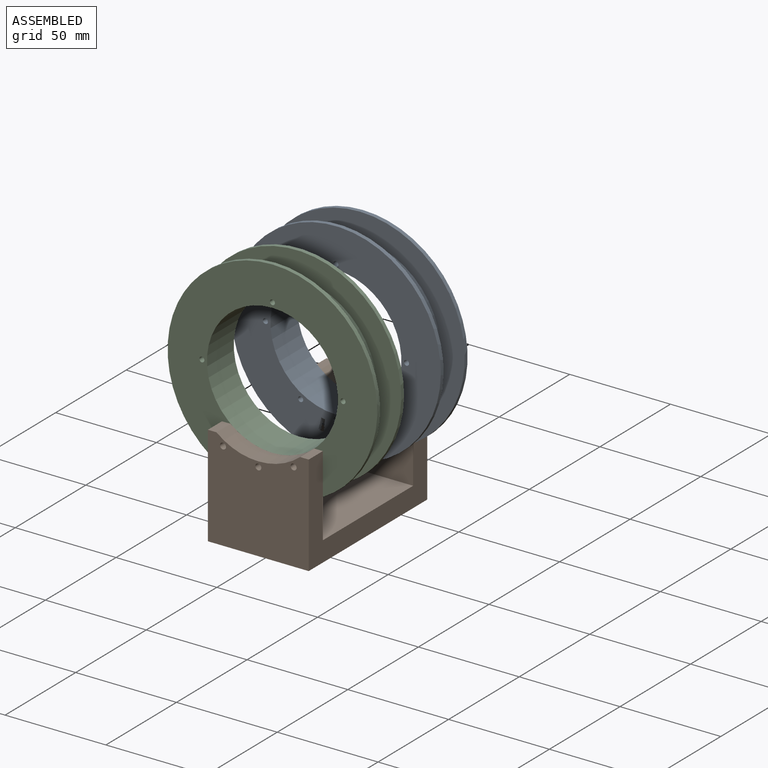
[diagram: assembled view]
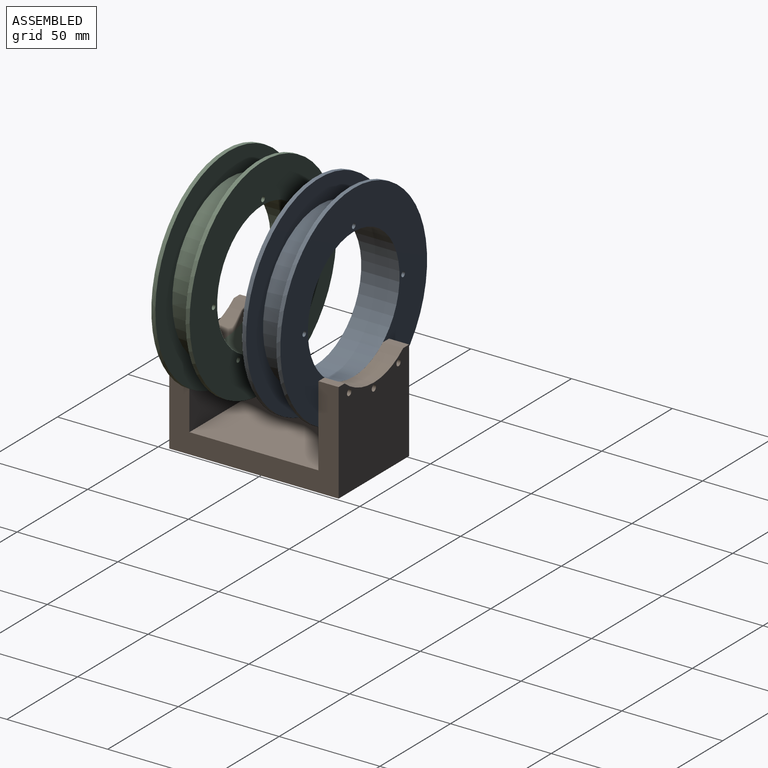
[diagram: assembled view, second angle]
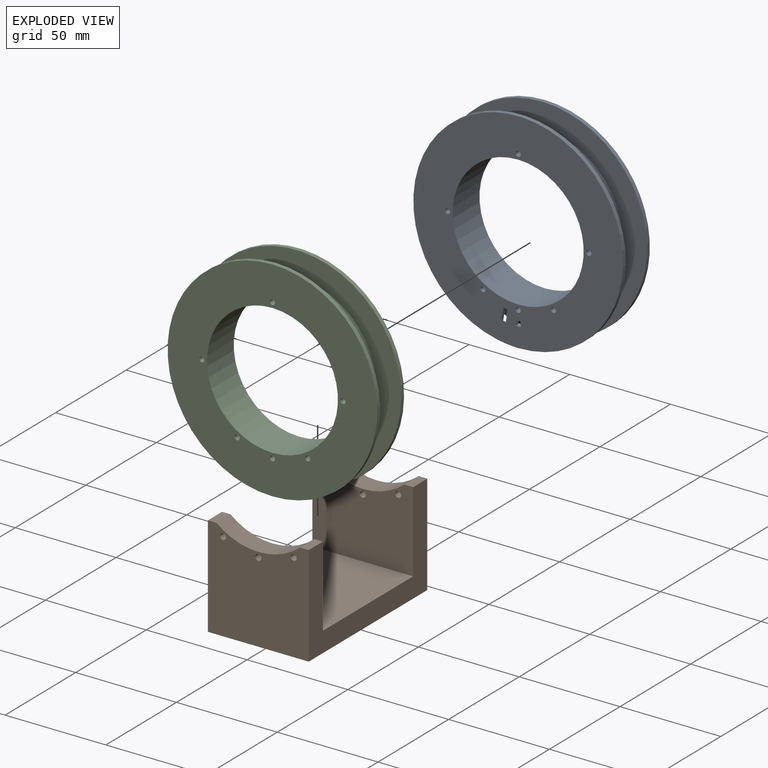
[diagram: exploded view]
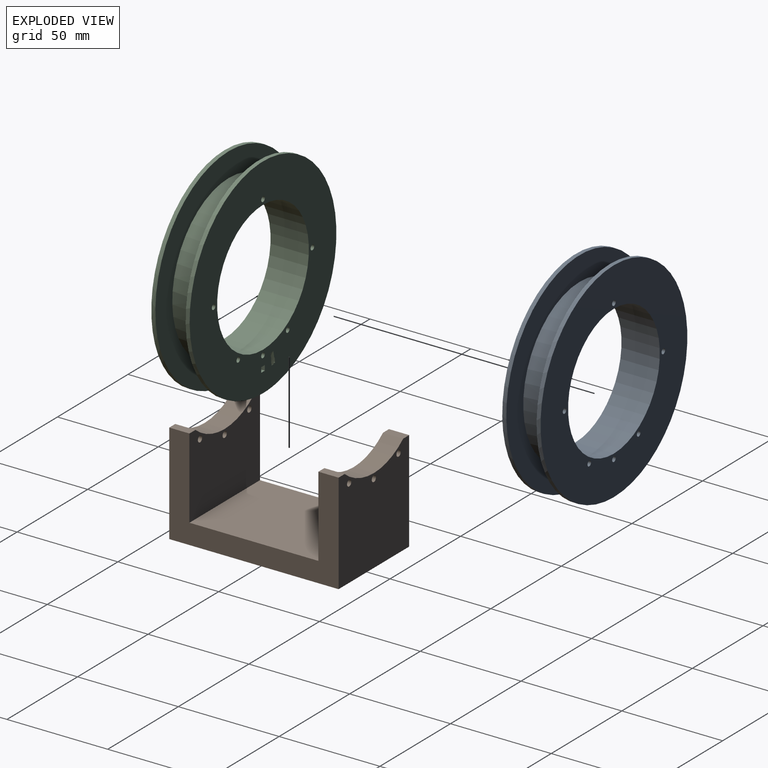
[diagram: exploded view, second angle]
ASSEMBLY  parts=3 mates=2
PART A: 31 faces, bbox 104x19x104 mm
  f0: plane 2.46x0.75mm, normal (0.17,0,0.98), area 0.3mm2, adj f1,f3,f17,f18,f25,f26,f27
  f1: plane 104x104mm, normal (0,-1,0), area 5127.9mm2, adj f0,f2,f6,f7,f11,f12,f13,f14
  f2: plane 2.46x2mm, normal (-0.17,0,-0.98), area 1mm2, adj f1,f17,f18,f19,f28,f29,f30
  f3: plane 9.92x4.14mm, normal (0,1,0), area 19.1mm2, adj f0,f6,f17,f18,f25,f26,f27
  f4: plane 104x104mm, normal (0,1,0), area 3432.4mm2, adj f6,f9,f17,f18,f21,f22,f23
  f5: plane 104x104mm, normal (0,1,0), area 5147.1mm2, adj f7,f8,f11,f12,f13,f14,f15,f16
  f6: cylinder r=52mm len=104mm, axis (0,-1,0), area 650.3mm2, adj f1,f3,f4,f17,f18
  f7: cylinder r=32.5mm len=65mm, axis (0,-1,0), area 3879.9mm2, adj f1,f5
  f8: cylinder r=52mm len=104mm, axis (0,-1,0), area 653.5mm2, adj f5,f10
  f9: cylinder r=40mm len=80mm, axis (0,-1,0), area 3769.9mm2, adj f4,f10,f19,f24
  f10: plane 104x104mm, normal (0,-1,0), area 3468.3mm2, adj f8,f9
  f11: cylinder r=1.25mm len=19mm, axis (0,1,0), area 149.2mm2, adj f1,f5
  f12: cylinder r=1.25mm len=19mm, axis (0,1,0), area 149.2mm2, adj f1,f5
  f13: cylinder r=1.25mm len=19mm, axis (0,1,0), area 149.2mm2, adj f1,f5
  f14: cylinder r=1.25mm len=19mm, axis (0,1,0), area 149.2mm2, adj f1,f5
  f15: cylinder r=1.25mm len=19mm, axis (0,1,0), area 149.2mm2, adj f1,f5
  f16: cylinder r=1.25mm len=19mm, axis (0,1,0), area 149.2mm2, adj f1,f5
  f17: plane 11.95x2.11mm, normal (-0.98,0,0.17), area 17mm2, adj f0,f1,f2,f3,f4,f6,f19
  f18: plane 11.95x2.11mm, normal (0.98,0,-0.17), area 17mm2, adj f0,f1,f2,f3,f4,f6,f19
  f19: plane 2.48x0.56mm, normal (0,-1,0), area 0.4mm2, adj f2,f9,f17,f18
  f20: plane 2.5x2mm, normal (0,0,-1), area 5mm2, adj f1,f21,f23,f24
  f21: plane 2.5x2mm, normal (1,0,0), area 5mm2, adj f1,f4,f20,f22,f24
  f22: plane 2.5x2mm, normal (0,0,1), area 5mm2, adj f1,f4,f21,f23
  f23: plane 2.5x2mm, normal (-1,0,0), area 5mm2, adj f1,f4,f20,f22,f24
  f24: plane 2.5x0.15mm, normal (0,-1,0), area 0.4mm2, adj f9,f20,f21,f23
  f25: cone r=42.3mm half-angle=71.6deg, axis (0,1,0), area 5.3mm2, adj f0,f3,f26,f27
  f26: plane 2.14x0.73mm, normal (0.98,0,-0.2), area 0.8mm2, adj f0,f3,f25
  f27: plane 2.16x0.73mm, normal (-0.99,0,0.15), area 0.8mm2, adj f0,f3,f25
  f28: cone r=40mm half-angle=60.3deg, axis (0,1,0), area 7.7mm2, adj f1,f2,f29,f30
  f29: plane 3.3x1.92mm, normal (0.98,0,-0.2), area 3.2mm2, adj f1,f2,f28
  f30: plane 3.33x1.92mm, normal (-0.99,0,0.15), area 3.2mm2, adj f1,f2,f28
PART B: 20 faces, bbox 50x84x50 mm
  f0: cylinder r=32.5mm len=41.53mm, axis (0,1,0), area 450.6mm2, adj f1,f2,f7,f9
  f1: plane 50x50mm, normal (0,-1,0), area 2265.8mm2, adj f0,f3,f4,f5,f6,f7,f8,f9
  f2: plane 50x40mm, normal (0,1,0), area 1765.8mm2, adj f0,f3,f4,f5,f6,f7,f8,f9
  f3: cylinder r=1.5mm len=10mm, axis (0,1,0), area 94.2mm2, adj f1,f2
  f4: cylinder r=1.5mm len=10mm, axis (0,1,0), area 94.2mm2, adj f1,f2
  f5: cylinder r=1.5mm len=10mm, axis (0,1,0), area 94.2mm2, adj f1,f2
  f6: plane 84x50mm, normal (1,0,0), area 1640mm2, adj f1,f2,f7,f11,f12,f16,f18,f19
  f7: plane 10x4.23mm, normal (0,0,1), area 42.3mm2, adj f0,f1,f2,f6
  f8: plane 84x50mm, normal (-1,0,0), area 1640mm2, adj f1,f2,f9,f11,f12,f17,f18,f19
  f9: plane 10x4.23mm, normal (0,0,1), area 42.3mm2, adj f0,f1,f2,f8
  f10: cylinder r=32.5mm len=41.53mm, axis (0,-1,0), area 450.6mm2, adj f11,f12,f16,f17
  f11: plane 50x50mm, normal (0,1,0), area 2265.8mm2, adj f6,f8,f10,f13,f14,f15,f16,f17
  f12: plane 50x40mm, normal (0,-1,0), area 1765.8mm2, adj f6,f8,f10,f13,f14,f15,f16,f17
  f13: cylinder r=1.5mm len=10mm, axis (0,-1,0), area 94.2mm2, adj f11,f12
  f14: cylinder r=1.5mm len=10mm, axis (0,-1,0), area 94.2mm2, adj f11,f12
  f15: cylinder r=1.5mm len=10mm, axis (0,-1,0), area 94.2mm2, adj f11,f12
  f16: plane 10x4.23mm, normal (0,0,1), area 42.3mm2, adj f6,f10,f11,f12
  f17: plane 10x4.23mm, normal (0,0,1), area 42.3mm2, adj f8,f10,f11,f12
  f18: plane 64x50mm, normal (0,0,1), area 3200mm2, adj f2,f6,f8,f12
  f19: plane 84x50mm, normal (0,0,-1), area 4200mm2, adj f1,f6,f8,f11
PART C: 31 faces, bbox 104x19x104 mm
  f0: plane 2.46x0.75mm, normal (0.17,0,0.98), area 0.3mm2, adj f1,f3,f17,f18,f25,f26,f27
  f1: plane 104x104mm, normal (0,1,0), area 5127.9mm2, adj f0,f2,f6,f7,f11,f12,f13,f14
  f2: plane 2.46x2mm, normal (-0.17,0,-0.98), area 1mm2, adj f1,f17,f18,f19,f28,f29,f30
  f3: plane 9.92x4.14mm, normal (0,-1,0), area 19.1mm2, adj f0,f6,f17,f18,f25,f26,f27
  f4: plane 104x104mm, normal (0,-1,0), area 3432.4mm2, adj f6,f9,f17,f18,f21,f22,f23
  f5: plane 104x104mm, normal (0,-1,0), area 5147.1mm2, adj f7,f8,f11,f12,f13,f14,f15,f16
  f6: cylinder r=52mm len=104mm, axis (0,1,0), area 650.3mm2, adj f1,f3,f4,f17,f18
  f7: cylinder r=32.5mm len=65mm, axis (0,1,0), area 3879.9mm2, adj f1,f5
  f8: cylinder r=52mm len=104mm, axis (0,1,0), area 653.5mm2, adj f5,f10
  f9: cylinder r=40mm len=80mm, axis (0,1,0), area 3769.9mm2, adj f4,f10,f19,f24
  f10: plane 104x104mm, normal (0,1,0), area 3468.3mm2, adj f8,f9
  f11: cylinder r=1.25mm len=19mm, axis (0,-1,0), area 149.2mm2, adj f1,f5
  f12: cylinder r=1.25mm len=19mm, axis (0,-1,0), area 149.2mm2, adj f1,f5
  f13: cylinder r=1.25mm len=19mm, axis (0,-1,0), area 149.2mm2, adj f1,f5
  f14: cylinder r=1.25mm len=19mm, axis (0,-1,0), area 149.2mm2, adj f1,f5
  f15: cylinder r=1.25mm len=19mm, axis (0,-1,0), area 149.2mm2, adj f1,f5
  f16: cylinder r=1.25mm len=19mm, axis (0,-1,0), area 149.2mm2, adj f1,f5
  f17: plane 11.95x2.11mm, normal (-0.98,0,0.17), area 17mm2, adj f0,f1,f2,f3,f4,f6,f19
  f18: plane 11.95x2.11mm, normal (0.98,0,-0.17), area 17mm2, adj f0,f1,f2,f3,f4,f6,f19
  f19: plane 2.48x0.56mm, normal (0,1,0), area 0.4mm2, adj f2,f9,f17,f18
  f20: plane 2.5x2mm, normal (0,0,-1), area 5mm2, adj f1,f21,f23,f24
  f21: plane 2.5x2mm, normal (1,0,0), area 5mm2, adj f1,f4,f20,f22,f24
  f22: plane 2.5x2mm, normal (0,0,1), area 5mm2, adj f1,f4,f21,f23
  f23: plane 2.5x2mm, normal (-1,0,0), area 5mm2, adj f1,f4,f20,f22,f24
  f24: plane 2.5x0.15mm, normal (0,1,0), area 0.4mm2, adj f9,f20,f21,f23
  f25: cone r=42.3mm half-angle=71.6deg, axis (0,-1,0), area 5.3mm2, adj f0,f3,f26,f27
  f26: plane 2.14x0.73mm, normal (0.98,0,-0.2), area 0.8mm2, adj f0,f3,f25
  f27: plane 2.16x0.73mm, normal (-0.99,0,0.15), area 0.8mm2, adj f0,f3,f25
  f28: cone r=40mm half-angle=60.3deg, axis (0,-1,0), area 7.7mm2, adj f1,f2,f29,f30
  f29: plane 3.3x1.92mm, normal (0.98,0,-0.2), area 3.2mm2, adj f1,f2,f28
  f30: plane 3.33x1.92mm, normal (-0.99,0,0.15), area 3.2mm2, adj f1,f2,f28
PLACE A t=(0,13,0)mm
PLACE B at identity
PLACE C t=(0,-13,0)mm
MATE parallel C.f12 <-> B.f3  axis (0,-1,0) through (0,-32,-35)mm
MATE parallel A.f12 <-> B.f3  axis (0,1,0) through (0,32,-35)mm
